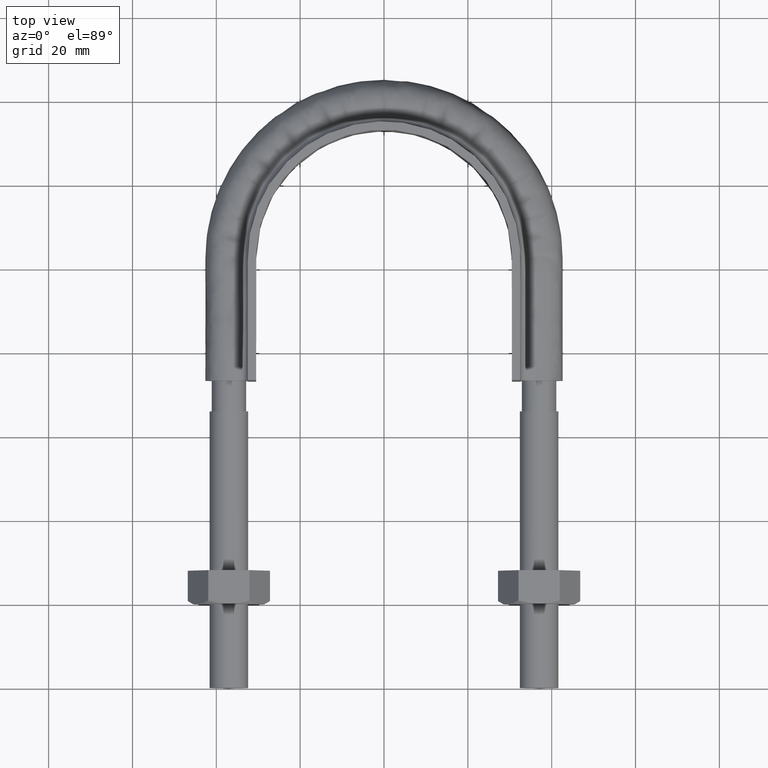
[diagram: clean part render]
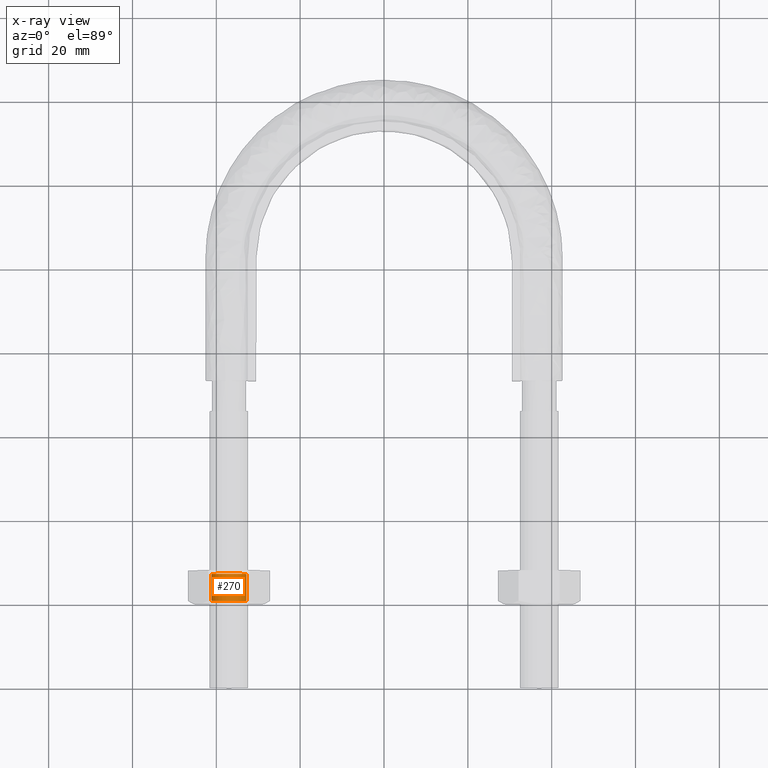
[diagram: x-ray — body ghosted, one internal face saturated and labeled with its STEP entity id]
A machine part, top view, then the same camera in x-ray: the body is ghosted and one INTERNAL B-rep face — a face not visible from any outside direction — is saturated and labeled: STEP entity #270.
In plain terms, the highlighted cylindrical surface (bore or boss wall) has radius 4.188 mm, axis along (-0, -1, 0).
Its self-contained STEP definition (entity closure, byte-faithful):
#270 = ADVANCED_FACE( '', ( #411, #412 ), #413, .F. );
#411 = FACE_OUTER_BOUND( '', #1408, .T. );
#412 = FACE_OUTER_BOUND( '', #1409, .T. );
#413 = CYLINDRICAL_SURFACE( '', #1410, 4.18800000000000 );
#1408 = EDGE_LOOP( '', ( #1820 ) );
#1409 = EDGE_LOOP( '', ( #1821 ) );
#1410 = AXIS2_PLACEMENT_3D( '', #1822, #1823, #1824 );
#1820 = ORIENTED_EDGE( '', *, *, #2102, .T. );
#1821 = ORIENTED_EDGE( '', *, *, #2101, .F. );
#1822 = CARTESIAN_POINT( '', ( -37.0000000000000, 27.9999999999964, -1.11228300875288E-015 ) );
#1823 = DIRECTION( '', ( -2.44921270764476E-016, -1.00000000000000, 6.12303176911189E-017 ) );
#1824 = DIRECTION( '', ( -0.866025403784242, 1.81492883563574E-016, -0.500000000000340 ) );
#2101 = EDGE_CURVE( '', #2315, #2315, #2316, .T. );
#2102 = EDGE_CURVE( '', #2317, #2317, #2318, .T. );
#2315 = VERTEX_POINT( '', #2898 );
#2316 = CIRCLE( '', #2899, 4.18800000000000 );
#2317 = VERTEX_POINT( '', #2900 );
#2318 = CIRCLE( '', #2901, 4.18800000000000 );
#2898 = CARTESIAN_POINT( '', ( -40.6269143910484, 20.8119999999964, -2.09400000000142 ) );
#2899 = AXIS2_PLACEMENT_3D( '', #3218, #3219, #3220 );
#2900 = CARTESIAN_POINT( '', ( -40.6269143910484, 27.1879999999964, -2.09400000000142 ) );
#2901 = AXIS2_PLACEMENT_3D( '', #3221, #3222, #3223 );
#3218 = CARTESIAN_POINT( '', ( -37.0000000000000, 20.8119999999964, -6.72159485189117E-016 ) );
#3219 = DIRECTION( '', ( 2.44921270764476E-016, 1.00000000000000, -6.12303176911189E-017 ) );
#3220 = DIRECTION( '', ( -0.866025403784242, 1.81492883563574E-016, -0.500000000000340 ) );
#3221 = CARTESIAN_POINT( '', ( -37.0000000000000, 27.1879999999964, -1.06256399078769E-015 ) );
#3222 = DIRECTION( '', ( 2.44921270764476E-016, 1.00000000000000, -6.12303176911189E-017 ) );
#3223 = DIRECTION( '', ( -0.866025403784242, 1.81492883563574E-016, -0.500000000000340 ) );